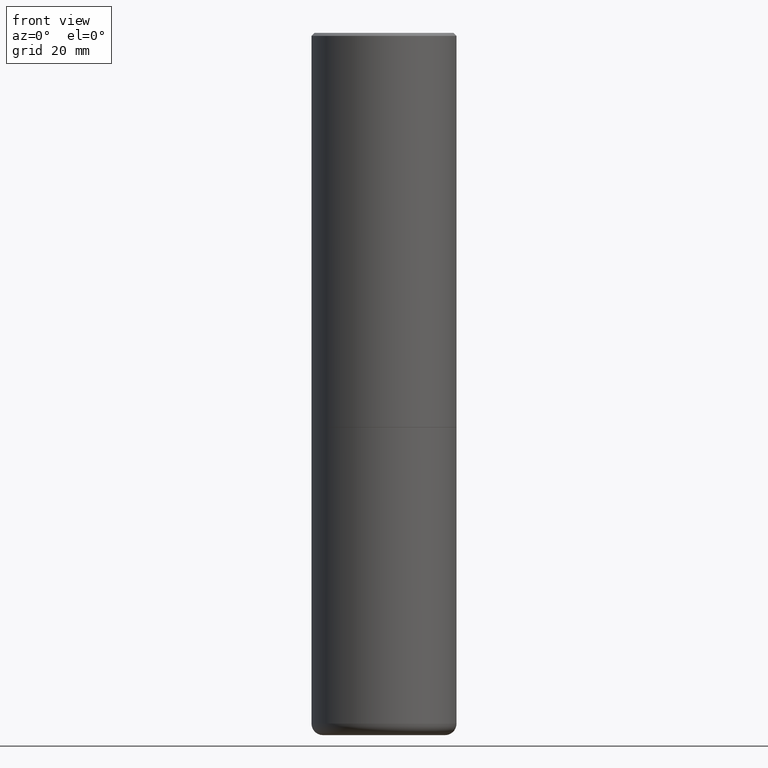
[diagram: clean part render]
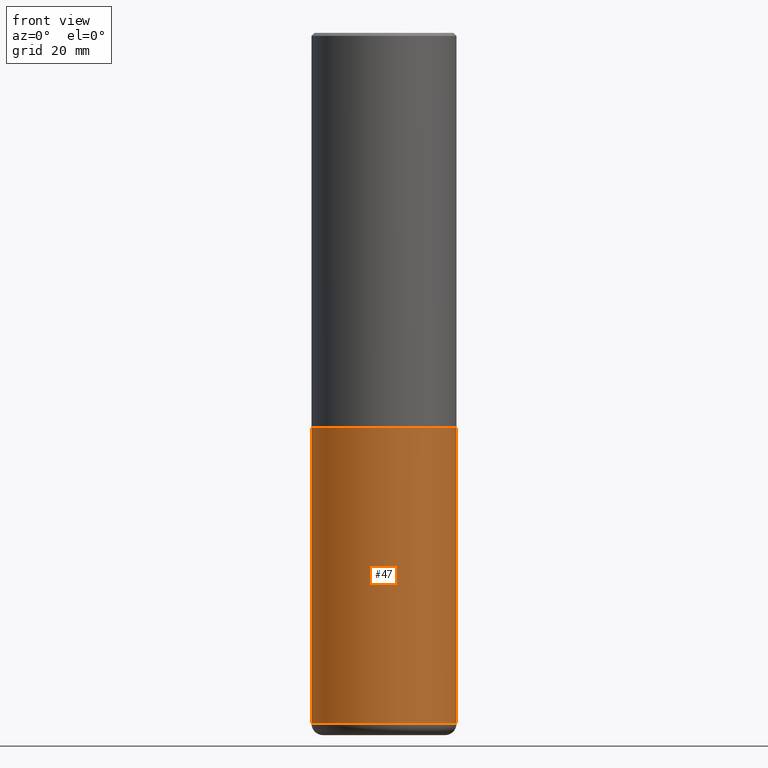
[diagram: same view with one face highlighted and labeled with its STEP entity id]
A machine part, front view. The second image highlights one B-rep face of the part: STEP entity #47.
In plain terms, the highlighted cylindrical surface (partial cylindrical patch) has radius 12.5006 mm, axis along (-0, 0, 1).
Its self-contained STEP definition (entity closure, byte-faithful):
#10 = AXIS2_PLACEMENT_3D ( 'NONE', #30, #310, #383 ) ;
#13 = EDGE_CURVE ( 'NONE', #280, #351, #110, .T. ) ;
#30 = CARTESIAN_POINT ( 'NONE',  ( 0.000000000000000000, 0.000000000000000000, 0.000000000000000000 ) ) ;
#37 = DIRECTION ( 'NONE',  ( -2.445468806185136877E-29, 3.491481338843145188E-15, 1.000000000000000000 ) ) ;
#46 = CARTESIAN_POINT ( 'NONE',  ( 0.4921499999999999764, -3.436665081823295777E-15, 2.399810400207969603E-29 ) ) ;
#47 = ADVANCED_FACE ( 'NONE', ( #183 ), #56, .T. ) ;
#53 = VECTOR ( 'NONE', #67, 39.37007874015748143 ) ;
#56 = CYLINDRICAL_SURFACE ( 'NONE', #10, 0.4921499999999999764 ) ;
#57 = DIRECTION ( 'NONE',  ( -2.445468806185136597E-29, 3.491481338843145583E-15, 1.000000000000000000 ) ) ;
#67 = DIRECTION ( 'NONE',  ( -2.445468806185136877E-29, 3.491481338843145188E-15, 1.000000000000000000 ) ) ;
#69 = EDGE_CURVE ( 'NONE', #94, #223, #120, .T. ) ;
#71 = LINE ( 'NONE', #46, #53 ) ;
#83 = DIRECTION ( 'NONE',  ( 1.000000000000000000, -6.982962677686265922E-15, 0.000000000000000000 ) ) ;
#94 = VERTEX_POINT ( 'NONE', #378 ) ;
#104 = EDGE_CURVE ( 'NONE', #94, #280, #417, .T. ) ;
#110 = CIRCLE ( 'NONE', #402, 0.4921499999999999764 ) ;
#120 = CIRCLE ( 'NONE', #342, 0.4921500000000000319 ) ;
#141 = CARTESIAN_POINT ( 'NONE',  ( -0.4921499999999999764, -9.355730456439111248E-15, -2.677199999999999580 ) ) ;
#154 = CARTESIAN_POINT ( 'NONE',  ( 1.145726590385798145E-28, -1.635793922061402197E-14, -4.685099999999999376 ) ) ;
#183 = FACE_OUTER_BOUND ( 'NONE', #283, .T. ) ;
#185 = ORIENTED_EDGE ( 'NONE', *, *, #242, .T. ) ;
#191 = CARTESIAN_POINT ( 'NONE',  ( -0.4921499999999999764, 3.496936074043332897E-15, -2.420853904668951509E-29 ) ) ;
#217 = VECTOR ( 'NONE', #37, 39.37007874015748143 ) ;
#221 = CARTESIAN_POINT ( 'NONE',  ( 6.547009087918846705E-29, -9.347393840350866318E-15, -2.677199999999999580 ) ) ;
#223 = VERTEX_POINT ( 'NONE', #234 ) ;
#234 = CARTESIAN_POINT ( 'NONE',  ( 0.4921499999999998098, -1.979460430243731302E-14, -4.685099999999999376 ) ) ;
#242 = EDGE_CURVE ( 'NONE', #223, #351, #71, .T. ) ;
#243 = DIRECTION ( 'NONE',  ( -2.445468806185136597E-29, 3.491481338843145583E-15, 1.000000000000000000 ) ) ;
#280 = VERTEX_POINT ( 'NONE', #141 ) ;
#283 = EDGE_LOOP ( 'NONE', ( #319, #356, #185, #311 ) ) ;
#310 = DIRECTION ( 'NONE',  ( -2.445468806185136597E-29, 3.491481338843145583E-15, 1.000000000000000000 ) ) ;
#311 = ORIENTED_EDGE ( 'NONE', *, *, #13, .F. ) ;
#319 = ORIENTED_EDGE ( 'NONE', *, *, #104, .F. ) ;
#341 = DIRECTION ( 'NONE',  ( 1.000000000000000000, -6.982962677686265133E-15, 0.000000000000000000 ) ) ;
#342 = AXIS2_PLACEMENT_3D ( 'NONE', #154, #243, #341 ) ;
#351 = VERTEX_POINT ( 'NONE', #403 ) ;
#356 = ORIENTED_EDGE ( 'NONE', *, *, #69, .T. ) ;
#378 = CARTESIAN_POINT ( 'NONE',  ( -0.4921499999999998098, -1.286100314657068829E-14, -4.685099999999999376 ) ) ;
#383 = DIRECTION ( 'NONE',  ( 1.000000000000000000, -6.982962677686265922E-15, 4.876176775795935793E-29 ) ) ;
#402 = AXIS2_PLACEMENT_3D ( 'NONE', #221, #57, #83 ) ;
#403 = CARTESIAN_POINT ( 'NONE',  ( 0.4921499999999999764, -1.278405892217416209E-14, -2.677199999999999580 ) ) ;
#417 = LINE ( 'NONE', #191, #217 ) ;